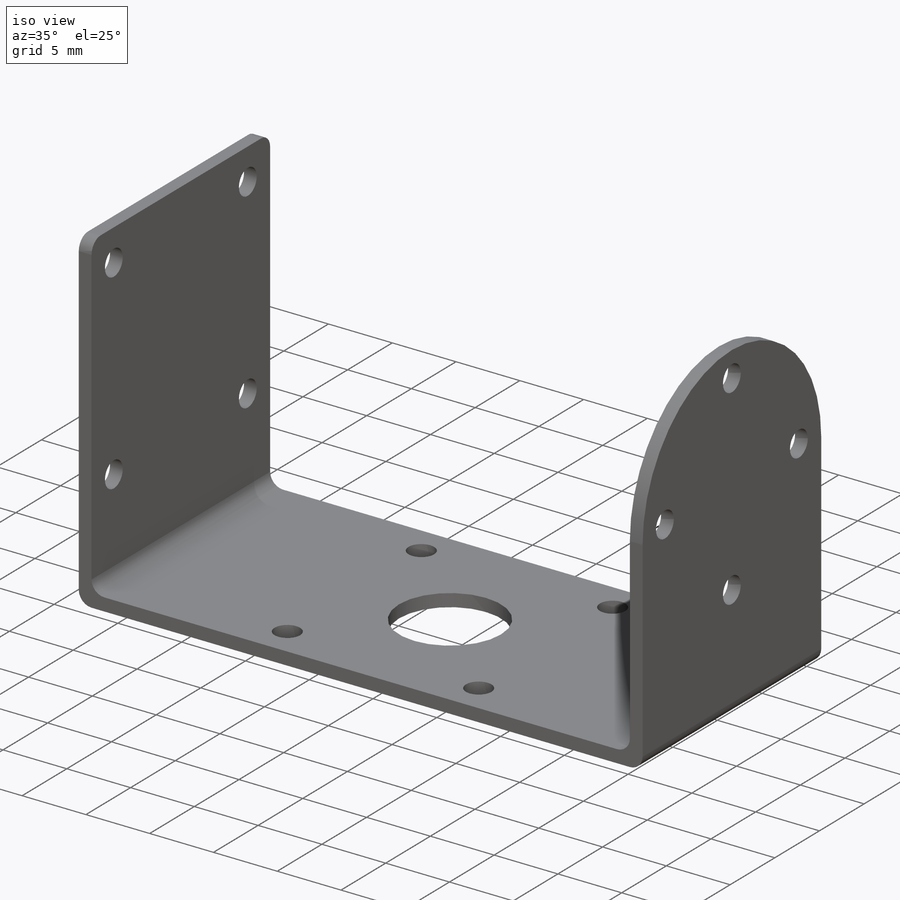
[diagram: iso view]
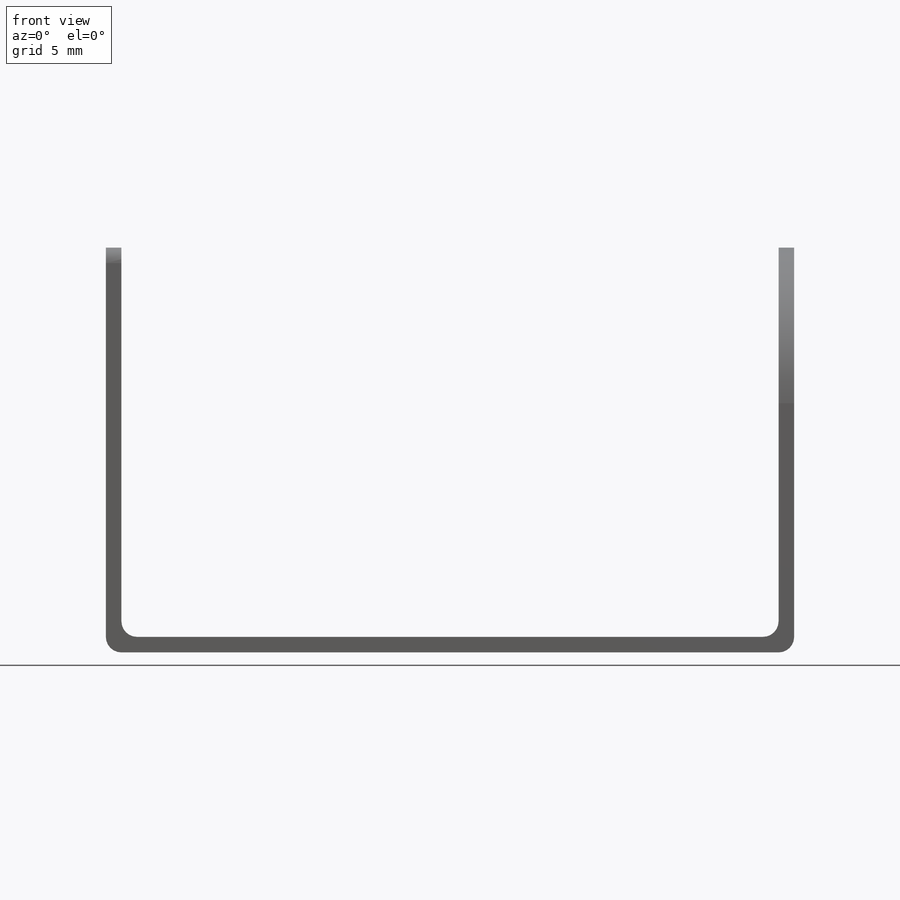
[diagram: front view]
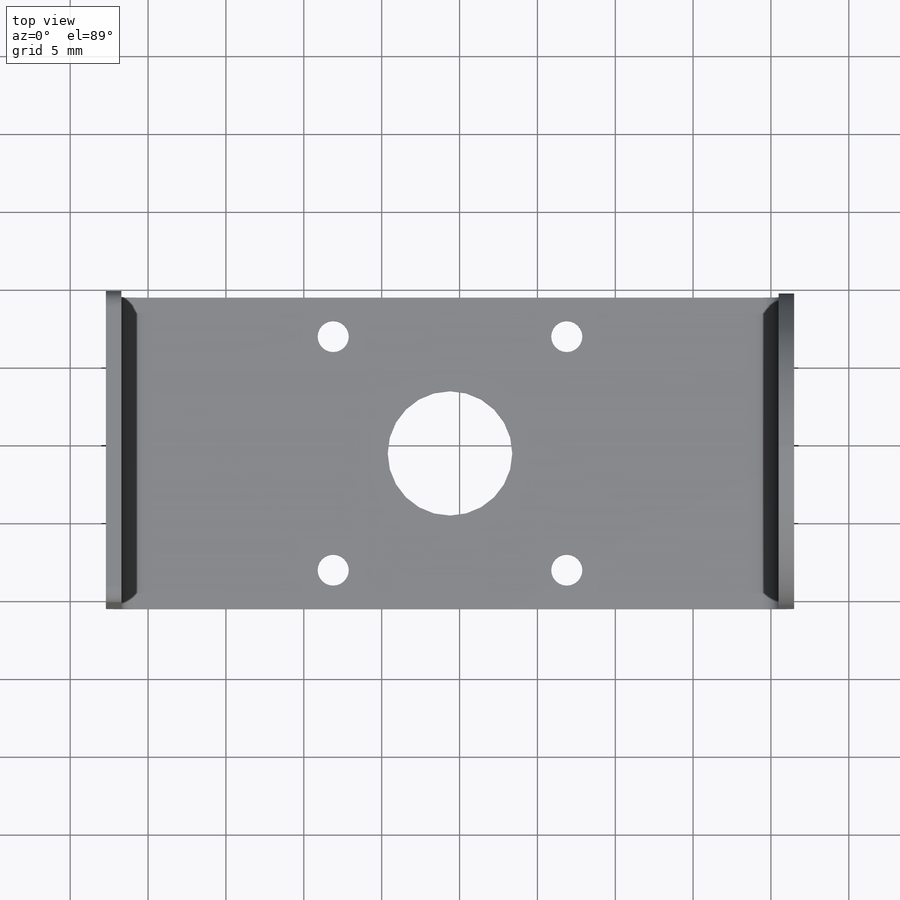
[diagram: top view]
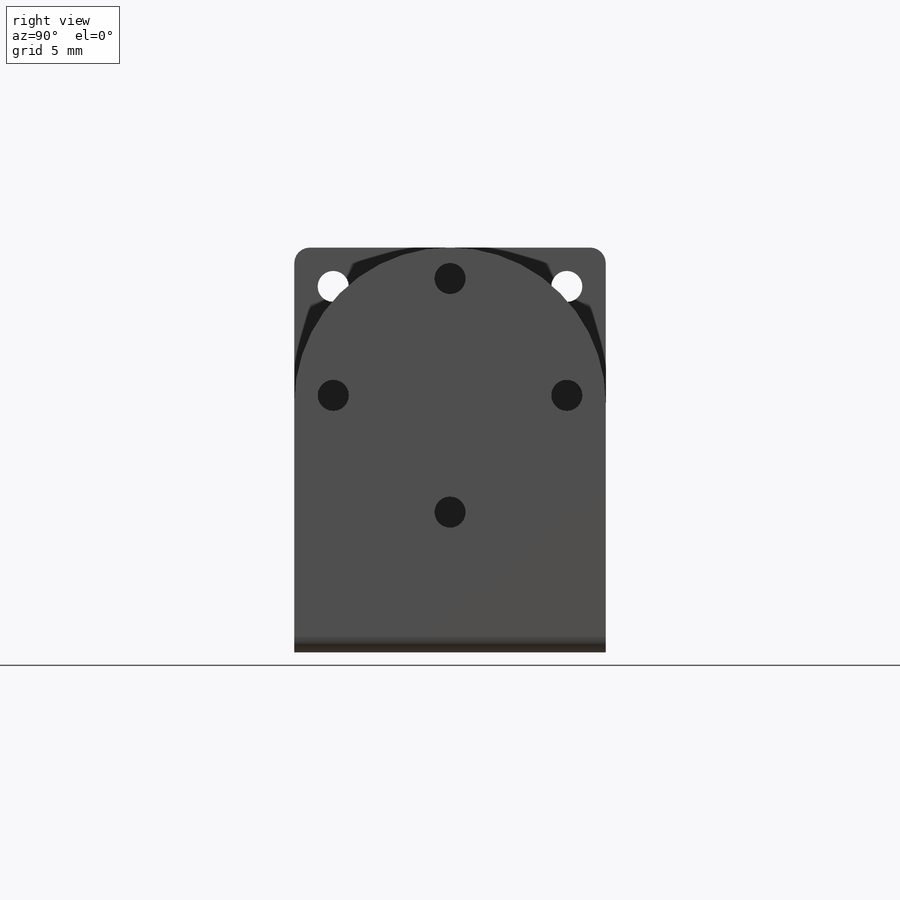
[diagram: right view]
SOLIDWORKS PART (.sldprt)
format: sldprt  version: not decoded by parser v0  size: 267,776 bytes
history: native  units: mm
features: fillet x8, sketch x6, plane x3, extrude x3, cut_extrude x3, material x1 (+10 scaffold rows collapsed)
feature tree (34):
  scaffold x10  (default folders/planes/origin — collapsed)
  material  "Alúmina"
  plane  "Alzado"
  plane  "Planta"
  plane  "Vista lateral"
  sketch  "Croquis1"  dims[D1=20.0mm D2=42.0mm]
  extrude  "Saliente-Extruir1"  Depth=1mm
  sketch  "Croquis2"  dims[D1=26.0mm]
  sketch  "Croquis4"  dims[D1=26.0mm]
  extrude  "Saliente-Extruir2"  Depth=0.001mm
  fillet  "Redondeo1"  Radius=1mm
  fillet  "Redondeo2"  Radius=1mm
  extrude  "Saliente-Extruir3"  Depth=0.001mm
  fillet  "Redondeo3"  Radius=1mm
  fillet  "Redondeo4"  Radius=1mm
  sketch  "Croquis5"  dims[D1=7.5mm]
  cut_extrude  "Cortar-Extruir2"  Depth=2mm
  fillet  "Redondeo5"  Radius=10mm
  fillet  "Redondeo6"  Radius=10mm
  sketch  "Croquis6"  dims[D1=15.0mm]
  cut_extrude  "Cortar-Extruir3"  Depth=1.5mm
  fillet  "Redondeo7"  Radius=1mm
  fillet  "Redondeo8"  Radius=1mm
  sketch  "Croquis8"  dims[D1=7.5mm]
  cut_extrude  "Cortar-Extruir4"  Depth=1mm
decode coverage: 20 of 20 modeling features carry decoded parameters
note: suppression state not decoded; provenance and decode notes live in map.json
